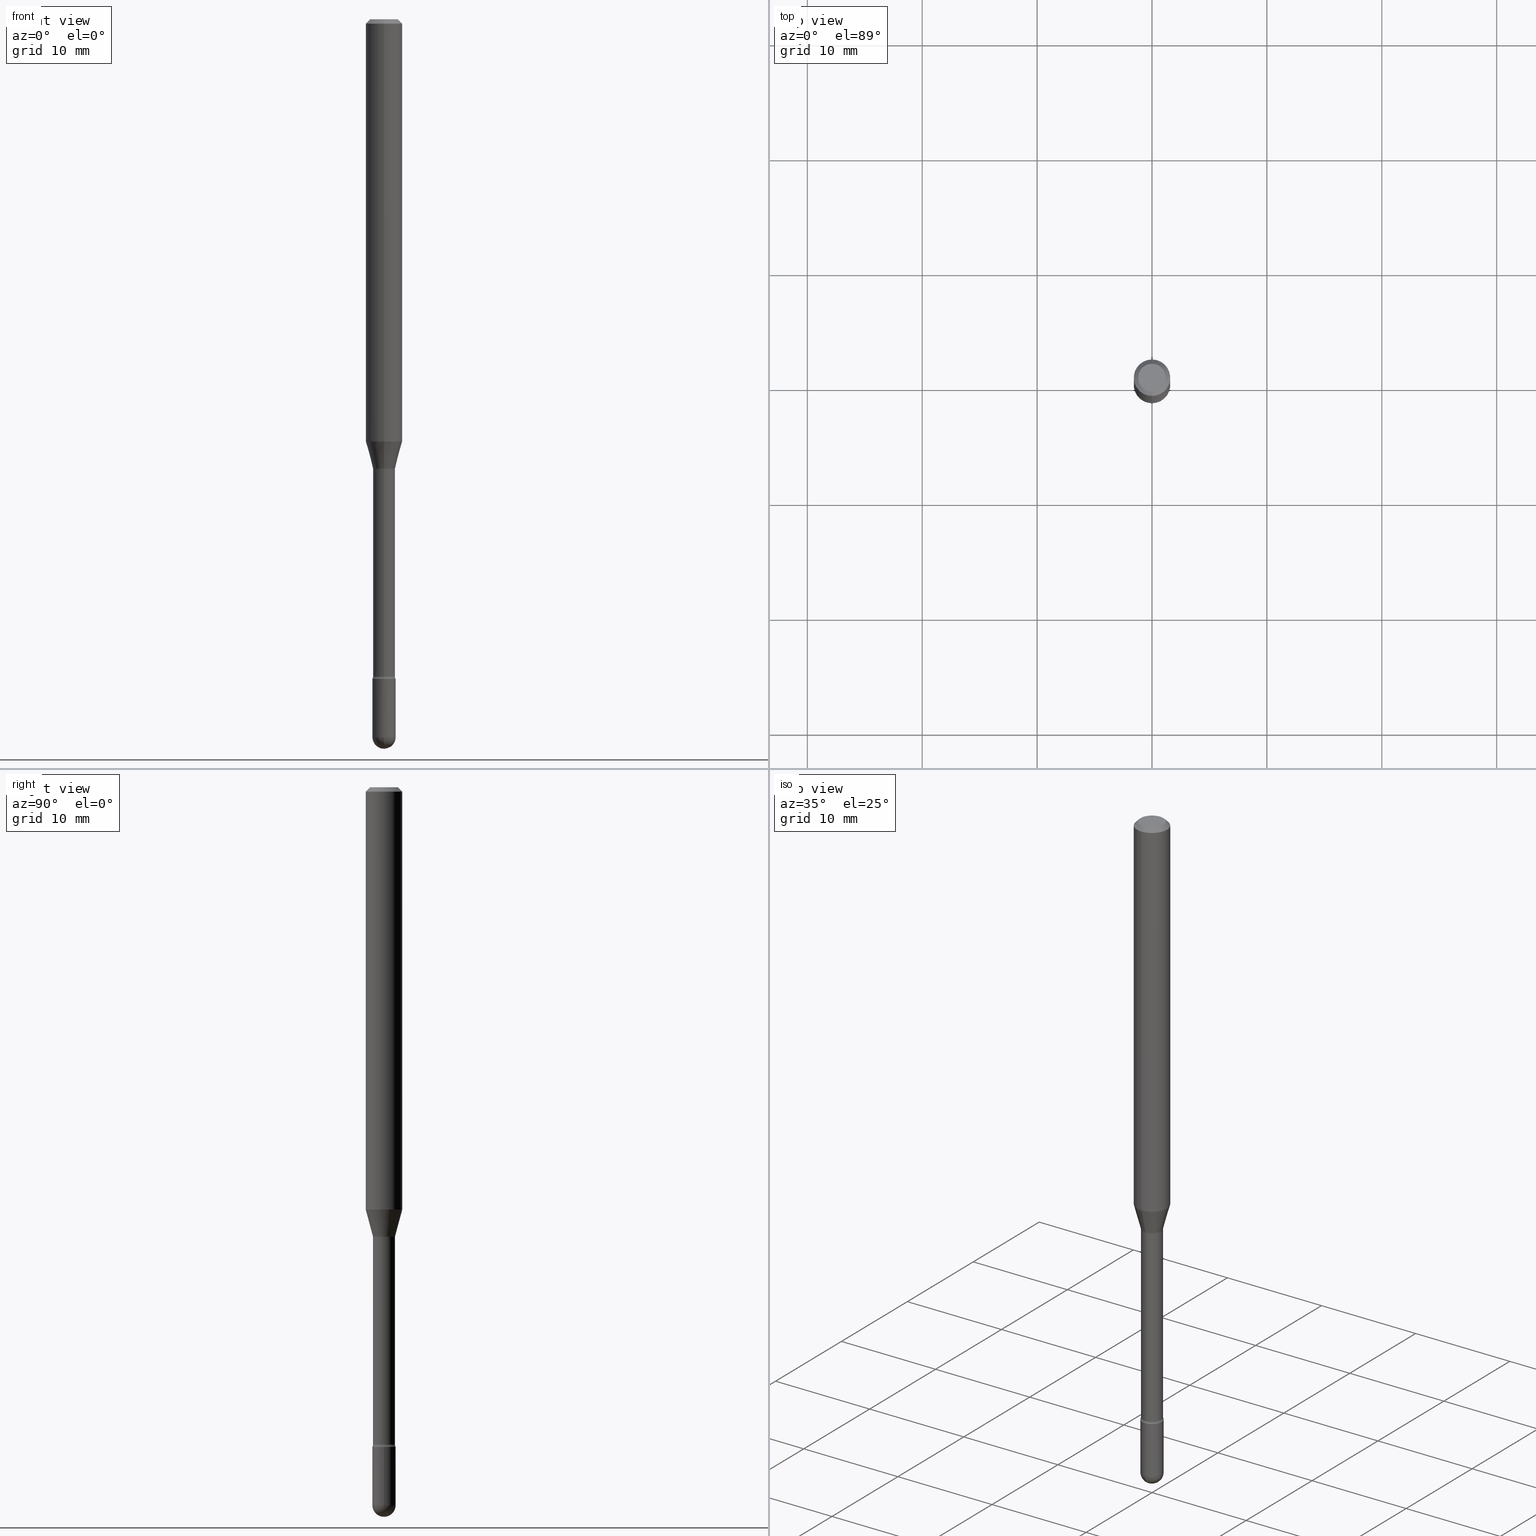
[diagram: canonical four-view strip — front | top / right | iso, engineering-drawing reading convention]
A machine part, canonical four-view strip (front | top / right | iso — engineering-drawing reading convention). The complete STEP part file that produces these views, byte-faithful:
ISO-10303-21;
HEADER;
FILE_DESCRIPTION (( 'STEP AP203' ),
    '1' );
FILE_NAME ('03742.STEP',
    '2024-04-09T20:18:51',
    ( '' ),
    ( '' ),
    'SwSTEP 2.0',
    'SolidWorks 2023',
    '' );
FILE_SCHEMA (( 'CONFIG_CONTROL_DESIGN' ));
ENDSEC;

DATA;
#1 = DATE_AND_TIME ( #471, #427 ) ;
#2 = DIRECTION ( 'NONE',  ( -2.445468806185136597E-29, 3.491481338843145583E-15, 1.000000000000000000 ) ) ;
#3 = ORIENTED_EDGE ( 'NONE', *, *, #82, .T. ) ;
#4 = AXIS2_PLACEMENT_3D ( 'NONE', #269, #273, #443 ) ;
#5 = CIRCLE ( 'NONE', #114, 0.06250000000000000000 ) ;
#6 = CARTESIAN_POINT ( 'NONE',  ( 0.000000000000000000, 0.000000000000000000, 0.000000000000000000 ) ) ;
#7 = ORIENTED_EDGE ( 'NONE', *, *, #353, .T. ) ;
#8 = ORIENTED_EDGE ( 'NONE', *, *, #401, .T. ) ;
#9 = AXIS2_PLACEMENT_3D ( 'NONE', #409, #200, #368 ) ;
#10 = DIRECTION ( 'NONE',  ( 2.445453356995440732E-29, -3.491503462962103086E-15, -1.000000000000000000 ) ) ;
#11 = AXIS2_PLACEMENT_3D ( 'NONE', #565, #493, #365 ) ;
#12 = EDGE_CURVE ( 'NONE', #300, #315, #261, .T. ) ;
#13 = DIRECTION ( 'NONE',  ( -6.982962677686265922E-15, -1.000000000000000000, 4.370956789862821150E-15 ) ) ;
#14 = CARTESIAN_POINT ( 'NONE',  ( 0.03999999999999999389, -8.519214466777273470E-15, -2.459999999999999964 ) ) ;
#15 = CARTESIAN_POINT ( 'NONE',  ( -2.842170943039800282E-16, -0.04000000000000860506, -2.459999999999999520 ) ) ;
#16 = DIRECTION ( 'NONE',  ( -2.445453356995440732E-29, 3.491503462962103086E-15, 1.000000000000000000 ) ) ;
#17 = CARTESIAN_POINT ( 'NONE',  ( 3.761333471865202687E-29, -5.370255296346309344E-15, -1.538092501787273081 ) ) ;
#18 =( NAMED_UNIT ( * ) SI_UNIT ( $, .STERADIAN. ) SOLID_ANGLE_UNIT ( ) );
#19 = VECTOR ( 'NONE', #506, 39.37007874015748143 ) ;
#20 = AXIS2_PLACEMENT_3D ( 'NONE', #477, #60, #393 ) ;
#21 = AXIS2_PLACEMENT_3D ( 'NONE', #535, #2, #450 ) ;
#22 = DIRECTION ( 'NONE',  ( -2.445453356995440732E-29, 3.491503462962103086E-15, 1.000000000000000000 ) ) ;
#23 = DIRECTION ( 'NONE',  ( 0.000000000000000000, 0.000000000000000000, 1.000000000000000000 ) ) ;
#24 = LINE ( 'NONE', #541, #281 ) ;
#25 = PERSON_AND_ORGANIZATION ( #253, #481 ) ;
#26 = CARTESIAN_POINT ( 'NONE',  ( 6.015853263215436432E-29, -8.589044093554138346E-15, -2.459999999999999964 ) ) ;
#27 = ORIENTED_EDGE ( 'NONE', *, *, #353, .F. ) ;
#28 = DIRECTION ( 'NONE',  ( -6.982962677686265922E-15, -1.000000000000000000, 3.491503462962102692E-15 ) ) ;
#29 = EDGE_CURVE ( 'NONE', #39, #558, #496, .T. ) ;
#30 = DIRECTION ( 'NONE',  ( -2.445453356995440732E-29, 3.491503462962103086E-15, 1.000000000000000000 ) ) ;
#31 = AXIS2_PLACEMENT_3D ( 'NONE', #66, #153, #13 ) ;
#32 =( GEOMETRIC_REPRESENTATION_CONTEXT ( 3 ) GLOBAL_UNCERTAINTY_ASSIGNED_CONTEXT ( ( #455 ) ) GLOBAL_UNIT_ASSIGNED_CONTEXT ( ( #341, #419, #18 ) ) REPRESENTATION_CONTEXT ( 'NONE', 'WORKASPACE' ) );
#33 = ORIENTED_EDGE ( 'NONE', *, *, #254, .F. ) ;
#34 = PLANE ( 'NONE',  #54 ) ;
#35 = DIRECTION ( 'NONE',  ( -4.851104656540964275E-15, -0.7071067811865500152, -0.7071067811865450192 ) ) ;
#36 = ADVANCED_FACE ( 'NONE', ( #52 ), #400, .T. ) ;
#37 = ORIENTED_EDGE ( 'NONE', *, *, #556, .T. ) ;
#38 = CYLINDRICAL_SURFACE ( 'NONE', #436, 0.06250000000000000000 ) ;
#39 = VERTEX_POINT ( 'NONE', #235 ) ;
#40 = DIRECTION ( 'NONE',  ( -6.982962677686265922E-15, -1.000000000000000000, 0.000000000000000000 ) ) ;
#41 = AXIS2_PLACEMENT_3D ( 'NONE', #464, #349, #168 ) ;
#42 = ORIENTED_EDGE ( 'NONE', *, *, #449, .F. ) ;
#43 = CC_DESIGN_APPROVAL ( #505, ( #224 ) ) ;
#44 = CALENDAR_DATE ( 2024, 9, 4 ) ;
#45 = DIRECTION ( 'NONE',  ( -6.982962677686265922E-15, -1.000000000000000000, 3.491503462962103086E-15 ) ) ;
#46 = ORIENTED_EDGE ( 'NONE', *, *, #475, .F. ) ;
#47 = COORDINATED_UNIVERSAL_TIME_OFFSET ( 5, 0, .BEHIND. ) ;
#48 = DIRECTION ( 'NONE',  ( -2.445453356995441012E-29, 3.491503462962102692E-15, 1.000000000000000000 ) ) ;
#49 = EDGE_CURVE ( 'NONE', #99, #379, #96, .T. ) ;
#50 = ORIENTED_EDGE ( 'NONE', *, *, #155, .T. ) ;
#51 = EDGE_CURVE ( 'NONE', #267, #384, #124, .T. ) ;
#52 = FACE_OUTER_BOUND ( 'NONE', #340, .T. ) ;
#53 = AXIS2_PLACEMENT_3D ( 'NONE', #215, #305, #241 ) ;
#54 = AXIS2_PLACEMENT_3D ( 'NONE', #550, #285, #28 ) ;
#55 = ORIENTED_EDGE ( 'NONE', *, *, #278, .F. ) ;
#56 = EDGE_LOOP ( 'NONE', ( #93, #8, #521, #358 ) ) ;
#57 = CARTESIAN_POINT ( 'NONE',  ( 6.015853263215436432E-29, -8.589044093554138346E-15, -2.459999999999999964 ) ) ;
#58 = PRODUCT_DEFINITION_SHAPE ( 'NONE', 'NONE',  #108 ) ;
#59 = FACE_OUTER_BOUND ( 'NONE', #478, .T. ) ;
#60 = DIRECTION ( 'NONE',  ( -2.445453356995440732E-29, 3.491503462962103086E-15, 1.000000000000000000 ) ) ;
#61 = AXIS2_PLACEMENT_3D ( 'NONE', #467, #249, #428 ) ;
#62 = CARTESIAN_POINT ( 'NONE',  ( 0.04000000000000000083, -8.170066332892960135E-15, -2.260000000000000231 ) ) ;
#63 = DIRECTION ( 'NONE',  ( 1.000000000000000000, -6.982962677686260400E-15, 0.000000000000000000 ) ) ;
#64 = DIRECTION ( 'NONE',  ( -6.982962677686265922E-15, -1.000000000000000000, 3.491503462962103086E-15 ) ) ;
#65 = DIRECTION ( 'NONE',  ( 1.000000000000000000, 0.000000000000000000, 0.000000000000000000 ) ) ;
#66 = CARTESIAN_POINT ( 'NONE',  ( 3.538746920994393063E-29, -5.052456671829066967E-15, -1.447071934891535294 ) ) ;
#67 = EDGE_CURVE ( 'NONE', #185, #486, #24, .T. ) ;
#68 = CALENDAR_DATE ( 2024, 9, 4 ) ;
#69 = CONICAL_SURFACE ( 'NONE', #451, 0.03811111260566402148, 0.2617993877991499629 ) ;
#70 = AXIS2_PLACEMENT_3D ( 'NONE', #338, #119, #423 ) ;
#71 = CARTESIAN_POINT ( 'NONE',  ( 5.526724586809697337E-29, -7.890797826294354245E-15, -2.260000000000000231 ) ) ;
#72 = LENGTH_MEASURE_WITH_UNIT ( LENGTH_MEASURE( 0.02539999999999999897 ), #382 );
#73 = CARTESIAN_POINT ( 'NONE',  ( 2.707957421369351104E-16, 0.03811111260565865078, -1.538092501787273081 ) ) ;
#74 = EDGE_CURVE ( 'NONE', #379, #99, #271, .T. ) ;
#75 = CARTESIAN_POINT ( 'NONE',  ( 3.538746920994393063E-29, -5.052456671829066967E-15, -1.447071934891535294 ) ) ;
#76 = ORIENTED_EDGE ( 'NONE', *, *, #134, .T. ) ;
#77 = APPLICATION_PROTOCOL_DEFINITION ( 'international standard', 'config_control_design', 1994, #162 ) ;
#78 = DIRECTION ( 'NONE',  ( 6.982962677686265922E-15, 1.000000000000000000, -3.491503462962102692E-15 ) ) ;
#79 = AXIS2_PLACEMENT_3D ( 'NONE', #112, #377, #163 ) ;
#80 = ORIENTED_EDGE ( 'NONE', *, *, #546, .T. ) ;
#81 = DIRECTION ( 'NONE',  ( -2.445453356995440732E-29, 3.491503462962103086E-15, 1.000000000000000000 ) ) ;
#82 = EDGE_CURVE ( 'NONE', #534, #392, #327, .T. ) ;
#83 = VERTEX_POINT ( 'NONE', #62 ) ;
#84 = DIRECTION ( 'NONE',  ( 2.445453356995440732E-29, -3.491503462962102692E-15, -1.000000000000000000 ) ) ;
#85 = ORIENTED_EDGE ( 'NONE', *, *, #556, .F. ) ;
#86 = DIRECTION ( 'NONE',  ( -2.445453356995441012E-29, 3.491503462962102692E-15, 1.000000000000000000 ) ) ;
#87 = ORIENTED_EDGE ( 'NONE', *, *, #322, .F. ) ;
#88 = AXIS2_PLACEMENT_3D ( 'NONE', #26, #120, #297 ) ;
#89 = EDGE_CURVE ( 'NONE', #226, #558, #133, .T. ) ;
#90 = CARTESIAN_POINT ( 'NONE',  ( 3.668180035493181539E-31, -5.237255194443183669E-17, -0.01500000000000008271 ) ) ;
#91 = ORIENTED_EDGE ( 'NONE', *, *, #89, .F. ) ;
#92 = COORDINATED_UNIVERSAL_TIME_OFFSET ( 5, 0, .BEHIND. ) ;
#93 = ORIENTED_EDGE ( 'NONE', *, *, #260, .T. ) ;
#94 = EDGE_CURVE ( 'NONE', #300, #83, #539, .T. ) ;
#95 = EDGE_LOOP ( 'NONE', ( #345, #530, #125, #516 ) ) ;
#96 = CIRCLE ( 'NONE', #415, 0.04749999999999999362 ) ;
#97 = TOROIDAL_SURFACE ( 'NONE', #263, 0.05260000000000008419, 0.01499999999999999424 ) ;
#98 = CC_DESIGN_PERSON_AND_ORGANIZATION_ASSIGNMENT ( #219, #519, ( #224 ) ) ;
#99 = VERTEX_POINT ( 'NONE', #156 ) ;
#100 = CARTESIAN_POINT ( 'NONE',  ( 3.668180035493181539E-31, -5.237255194443183669E-17, -0.01500000000000008271 ) ) ;
#101 = EDGE_LOOP ( 'NONE', ( #118, #3, #402, #439 ) ) ;
#102 = LINE ( 'NONE', #538, #489 ) ;
#103 = DIRECTION ( 'NONE',  ( -2.445453356995440732E-29, 3.491503462962103086E-15, 1.000000000000000000 ) ) ;
#104 = CIRCLE ( 'NONE', #356, 0.04000000000000000083 ) ;
#105 = EDGE_CURVE ( 'NONE', #558, #226, #104, .T. ) ;
#106 = FACE_OUTER_BOUND ( 'NONE', #394, .T. ) ;
#107 = CARTESIAN_POINT ( 'NONE',  ( -2.661284769304128200E-16, -0.03811111260566939218, -1.538092501787273081 ) ) ;
#108 = PRODUCT_DEFINITION ( 'UNKNOWN', '', #224, #367 ) ;
#109 = COORDINATED_UNIVERSAL_TIME_OFFSET ( 5, 0, .BEHIND. ) ;
#110 = DIRECTION ( 'NONE',  ( -1.807323732225328167E-15, -0.2588190451025179084, 0.9659258262890690894 ) ) ;
#111 = EDGE_CURVE ( 'NONE', #392, #216, #193, .T. ) ;
#112 = CARTESIAN_POINT ( 'NONE',  ( 6.015853263215436432E-29, -8.589044093554138346E-15, -2.459999999999999964 ) ) ;
#113 = AXIS2_PLACEMENT_3D ( 'NONE', #75, #293, #243 ) ;
#114 = AXIS2_PLACEMENT_3D ( 'NONE', #90, #16, #525 ) ;
#115 = DIRECTION ( 'NONE',  ( -2.445468806185136877E-29, 3.491481338843145188E-15, 1.000000000000000000 ) ) ;
#116 = PERSON_AND_ORGANIZATION ( #253, #481 ) ;
#117 = CARTESIAN_POINT ( 'NONE',  ( 2.671640686458530486E-16, 0.03759999999999462383, -1.541974787463810781 ) ) ;
#118 = ORIENTED_EDGE ( 'NONE', *, *, #401, .F. ) ;
#119 = DIRECTION ( 'NONE',  ( -2.445453356995440732E-29, 3.491503462962103086E-15, 1.000000000000000000 ) ) ;
#120 = DIRECTION ( 'NONE',  ( 1.000000000000000000, -6.982962677686265922E-15, 4.883557194083112340E-29 ) ) ;
#121 = VERTEX_POINT ( 'NONE', #15 ) ;
#122 = ADVANCED_FACE ( 'NONE', ( #240 ), #69, .T. ) ;
#123 = CARTESIAN_POINT ( 'NONE',  ( 4.364351673553919652E-16, 0.06249999999999995143, -0.01500000000000030129 ) ) ;
#124 = CIRCLE ( 'NONE', #507, 0.03811111260566402148 ) ;
#125 = ORIENTED_EDGE ( 'NONE', *, *, #105, .T. ) ;
#126 = DATE_TIME_ROLE ( 'classification_date' ) ;
#127 = ADVANCED_FACE ( 'NONE', ( #326 ), #192, .T. ) ;
#128 = FACE_OUTER_BOUND ( 'NONE', #177, .T. ) ;
#129 = ORIENTED_EDGE ( 'NONE', *, *, #155, .F. ) ;
#130 = DIRECTION ( 'NONE',  ( 2.445453356995440732E-29, -3.491503462962103086E-15, -1.000000000000000000 ) ) ;
#131 = VERTEX_POINT ( 'NONE', #149 ) ;
#132 = CARTESIAN_POINT ( 'NONE',  ( 3.668180035493181539E-31, -5.237255194443183669E-17, -0.01500000000000008271 ) ) ;
#133 = CIRCLE ( 'NONE', #172, 0.04000000000000000083 ) ;
#134 = EDGE_CURVE ( 'NONE', #83, #186, #398, .T. ) ;
#135 = ORIENTED_EDGE ( 'NONE', *, *, #322, .T. ) ;
#136 = TOROIDAL_SURFACE ( 'NONE', #70, 0.05260000000000008419, 0.01499999999999999424 ) ;
#137 = ADVANCED_FACE ( 'NONE', ( #502 ), #448, .T. ) ;
#138 = EDGE_CURVE ( 'NONE', #384, #392, #407, .T. ) ;
#139 = ORIENTED_EDGE ( 'NONE', *, *, #449, .T. ) ;
#140 = ORIENTED_EDGE ( 'NONE', *, *, #29, .F. ) ;
#141 = MANIFOLD_SOLID_BREP ( 'Body-Move/Copy2[1]', #406 ) ;
#142 = ADVANCED_FACE ( 'NONE', ( #59 ), #336, .F. ) ;
#143 = ORIENTED_EDGE ( 'NONE', *, *, #479, .F. ) ;
#144 = CIRCLE ( 'NONE', #205, 0.01499999999999998557 ) ;
#145 = AXIS2_PLACEMENT_3D ( 'NONE', #228, #148, #369 ) ;
#146 = ORIENTED_EDGE ( 'NONE', *, *, #94, .T. ) ;
#147 = DIRECTION ( 'NONE',  ( 6.982962677686265922E-15, 1.000000000000000000, -3.483106191921935554E-15 ) ) ;
#148 = DIRECTION ( 'NONE',  ( -2.445453356995440732E-29, 3.491503462962103086E-15, 1.000000000000000000 ) ) ;
#149 = CARTESIAN_POINT ( 'NONE',  ( 4.440892098500982135E-16, 0.06249999999999995143, -0.01500000000000030129 ) ) ;
#150 = PERSON_AND_ORGANIZATION ( #253, #481 ) ;
#151 = LOCAL_TIME ( 16, 18, 51.00000000000000000, #201 ) ;
#152 = DIRECTION ( 'NONE',  ( 1.000000000000000000, -6.982962677686259611E-15, 0.000000000000000000 ) ) ;
#153 = DIRECTION ( 'NONE',  ( -2.445453356995440732E-29, 3.491503462962103086E-15, 1.000000000000000000 ) ) ;
#154 = APPROVAL_STATUS ( 'not_yet_approved' ) ;
#155 = EDGE_CURVE ( 'NONE', #384, #486, #144, .T. ) ;
#156 = CARTESIAN_POINT ( 'NONE',  ( -3.773273898774340269E-16, -0.04749999999999999362, 8.310043331480499267E-17 ) ) ;
#157 = PERSON_AND_ORGANIZATION_ROLE ( 'creator' ) ;
#158 = AXIS2_PLACEMENT_3D ( 'NONE', #457, #22, #373 ) ;
#159 = APPROVAL_PERSON_ORGANIZATION ( #170, #422, #484 ) ;
#160 = DIRECTION ( 'NONE',  ( -6.982962677686265922E-15, -1.000000000000000000, 3.491503462962103875E-15 ) ) ;
#161 = ORIENTED_EDGE ( 'NONE', *, *, #217, .T. ) ;
#162 = APPLICATION_CONTEXT ( 'configuration controlled 3d designs of mechanical parts and assemblies' ) ;
#163 = DIRECTION ( 'NONE',  ( 1.000000000000000000, -6.982962677686260400E-15, 0.000000000000000000 ) ) ;
#164 = DIRECTION ( 'NONE',  ( -2.445453356995440732E-29, 3.491503462962103086E-15, 1.000000000000000000 ) ) ;
#165 = EDGE_CURVE ( 'NONE', #39, #185, #542, .T. ) ;
#166 = APPROVAL_DATE_TIME ( #1, #422 ) ;
#167 = EDGE_CURVE ( 'NONE', #267, #534, #474, .T. ) ;
#168 = DIRECTION ( 'NONE',  ( 7.105427357601001859E-15, 1.000000000000000000, 0.000000000000000000 ) ) ;
#169 = ORIENTED_EDGE ( 'NONE', *, *, #134, .F. ) ;
#170 = PERSON_AND_ORGANIZATION ( #253, #481 ) ;
#171 = EDGE_CURVE ( 'NONE', #275, #486, #316, .T. ) ;
#172 = AXIS2_PLACEMENT_3D ( 'NONE', #190, #503, #237 ) ;
#173 = CARTESIAN_POINT ( 'NONE',  ( -4.287811248607203282E-16, -0.06250000000000005551, -0.01499999999999986587 ) ) ;
#174 = CIRCLE ( 'NONE', #79, 0.03999999999999999389 ) ;
#175 = ORIENTED_EDGE ( 'NONE', *, *, #49, .T. ) ;
#176 = CARTESIAN_POINT ( 'NONE',  ( -2.793185071073953101E-16, -0.04000000000000789036, -2.259999999999999787 ) ) ;
#177 = EDGE_LOOP ( 'NONE', ( #432, #161, #169, #303, #179 ) ) ;
#178 = CARTESIAN_POINT ( 'NONE',  ( 2.793185071075109275E-16, 0.03999999999999143130, -2.460000000000000409 ) ) ;
#179 = ORIENTED_EDGE ( 'NONE', *, *, #12, .T. ) ;
#180 = CARTESIAN_POINT ( 'NONE',  ( -2.625593966809658857E-16, -0.03760000000000538606, -1.541974787463810781 ) ) ;
#181 = AXIS2_PLACEMENT_3D ( 'NONE', #459, #335, #152 ) ;
#182 = ORIENTED_EDGE ( 'NONE', *, *, #546, .F. ) ;
#183 = DIRECTION ( 'NONE',  ( -2.445468806185136597E-29, 3.491481338843145583E-15, 1.000000000000000000 ) ) ;
#184 = EDGE_CURVE ( 'NONE', #99, #216, #387, .T. ) ;
#185 = VERTEX_POINT ( 'NONE', #252 ) ;
#186 = VERTEX_POINT ( 'NONE', #391 ) ;
#187 = AXIS2_PLACEMENT_3D ( 'NONE', #218, #312, #483 ) ;
#188 = AXIS2_PLACEMENT_3D ( 'NONE', #540, #325, #276 ) ;
#189 = DIRECTION ( 'NONE',  ( -2.445453356995440732E-29, 3.491503462962103086E-15, 1.000000000000000000 ) ) ;
#190 = CARTESIAN_POINT ( 'NONE',  ( 5.526724586809697337E-29, -7.890797826294354245E-15, -2.260000000000000231 ) ) ;
#191 = FACE_OUTER_BOUND ( 'NONE', #223, .T. ) ;
#192 = CYLINDRICAL_SURFACE ( 'NONE', #9, 0.06250000000000000000 ) ;
#193 = LINE ( 'NONE', #330, #19 ) ;
#194 = AXIS2_PLACEMENT_3D ( 'NONE', #418, #103, #64 ) ;
#195 = EDGE_CURVE ( 'NONE', #185, #226, #196, .T. ) ;
#196 = CIRCLE ( 'NONE', #221, 0.01499999999999999424 ) ;
#197 = TOROIDAL_SURFACE ( 'NONE', #145, 0.05260000000000000092, 0.01499999999999998557 ) ;
#198 = CARTESIAN_POINT ( 'NONE',  ( 2.023440515978458024E-45, -2.889184567745816405E-31, -8.274598117589490934E-17 ) ) ;
#199 = DATE_TIME_ROLE ( 'creation_date' ) ;
#200 = DIRECTION ( 'NONE',  ( -2.445453356995440732E-29, 3.491503462962103086E-15, 1.000000000000000000 ) ) ;
#201 = COORDINATED_UNIVERSAL_TIME_OFFSET ( 5, 0, .BEHIND. ) ;
#202 = CYLINDRICAL_SURFACE ( 'NONE', #543, 0.03760000000000005005 ) ;
#203 = ORIENTED_EDGE ( 'NONE', *, *, #82, .F. ) ;
#204 = DIRECTION ( 'NONE',  ( -7.105427357601000281E-15, -1.000000000000000000, 0.000000000000000000 ) ) ;
#205 = AXIS2_PLACEMENT_3D ( 'NONE', #287, #324, #280 ) ;
#206 = CIRCLE ( 'NONE', #461, 0.04000000000000004940 ) ;
#207 = CYLINDRICAL_SURFACE ( 'NONE', #346, 0.04000000000000000083 ) ;
#208 = ADVANCED_FACE ( 'NONE', ( #383 ), #472, .F. ) ;
#209 = EDGE_LOOP ( 'NONE', ( #55, #37, #42, #473 ) ) ;
#210 = CARTESIAN_POINT ( 'NONE',  ( -3.673038368462430836E-16, -0.05260000000000794596, -2.251861204020249918 ) ) ;
#211 = EDGE_LOOP ( 'NONE', ( #441, #175 ) ) ;
#212 = DIRECTION ( 'NONE',  ( 1.839019923739597949E-15, 0.2588190451025246253, 0.9659258262890670910 ) ) ;
#213 = ORIENTED_EDGE ( 'NONE', *, *, #138, .T. ) ;
#214 = CIRCLE ( 'NONE', #41, 0.01499999999999998557 ) ;
#215 = CARTESIAN_POINT ( 'NONE',  ( 3.668180035493181539E-31, -5.237255194443183669E-17, -0.01500000000000008271 ) ) ;
#216 = VERTEX_POINT ( 'NONE', #385 ) ;
#217 = EDGE_CURVE ( 'NONE', #490, #186, #342, .T. ) ;
#218 = CARTESIAN_POINT ( 'NONE',  ( 6.015853263215436432E-29, -8.589044093554138346E-15, -2.459999999999999964 ) ) ;
#219 = PERSON_AND_ORGANIZATION ( #253, #481 ) ;
#220 = ORIENTED_EDGE ( 'NONE', *, *, #184, .F. ) ;
#221 = AXIS2_PLACEMENT_3D ( 'NONE', #210, #563, #520 ) ;
#222 = ADVANCED_FACE ( 'NONE', ( #128 ), #207, .T. ) ;
#223 = EDGE_LOOP ( 'NONE', ( #33, #46, #50, #527 ) ) ;
#224 = PRODUCT_DEFINITION_FORMATION_WITH_SPECIFIED_SOURCE ( 'ANY', '', #270, .NOT_KNOWN. ) ;
#225 = EDGE_CURVE ( 'NONE', #216, #131, #238, .T. ) ;
#226 = VERTEX_POINT ( 'NONE', #176 ) ;
#227 = EDGE_LOOP ( 'NONE', ( #91, #350 ) ) ;
#228 = CARTESIAN_POINT ( 'NONE',  ( 3.770851242666705328E-29, -5.383776195396521708E-15, -1.541974787463811003 ) ) ;
#229 = CARTESIAN_POINT ( 'NONE',  ( 6.015853263215436432E-29, -8.589044093554138346E-15, -2.459999999999999964 ) ) ;
#230 = CC_DESIGN_APPROVAL ( #422, ( #363 ) ) ;
#231 = CC_DESIGN_SECURITY_CLASSIFICATION ( #363, ( #224 ) ) ;
#232 = CARTESIAN_POINT ( 'NONE',  ( 6.115382348041200269E-29, -8.726254053509568220E-15, -2.500000000000000000 ) ) ;
#233 = DIRECTION ( 'NONE',  ( -6.982962677686265922E-15, -1.000000000000000000, 6.829619984160658243E-15 ) ) ;
#234 = DIRECTION ( 'NONE',  ( -2.445468806185136597E-29, 3.491481338843145583E-15, 1.000000000000000000 ) ) ;
#235 = CARTESIAN_POINT ( 'NONE',  ( 2.756905814749742978E-16, 0.03759999999999222992, -2.251861204020249918 ) ) ;
#236 = PERSON_AND_ORGANIZATION_ROLE ( 'design_owner' ) ;
#237 = DIRECTION ( 'NONE',  ( -6.982962677686265922E-15, -1.000000000000000000, 6.829619984160658243E-15 ) ) ;
#238 = CIRCLE ( 'NONE', #53, 0.06250000000000000000 ) ;
#239 = VECTOR ( 'NONE', #302, 39.37007874015748143 ) ;
#240 = FACE_OUTER_BOUND ( 'NONE', #468, .T. ) ;
#241 = DIRECTION ( 'NONE',  ( -6.982962677686265922E-15, -1.000000000000000000, 3.483106191921935554E-15 ) ) ;
#242 = ADVANCED_FACE ( 'NONE', ( #510 ), #38, .T. ) ;
#243 = DIRECTION ( 'NONE',  ( -6.982962677686265922E-15, -1.000000000000000000, 4.370956789862821150E-15 ) ) ;
#244 = APPLICATION_CONTEXT ( 'configuration controlled 3d designs of mechanical parts and assemblies' ) ;
#245 = ORIENTED_EDGE ( 'NONE', *, *, #138, .F. ) ;
#246 = MECHANICAL_CONTEXT ( 'NONE', #162, 'mechanical' ) ;
#247 = EDGE_CURVE ( 'NONE', #486, #275, #515, .T. ) ;
#248 = AXIS2_PLACEMENT_3D ( 'NONE', #262, #440, #310 ) ;
#249 = DIRECTION ( 'NONE',  ( -2.445453356995440732E-29, 3.491503462962103086E-15, 1.000000000000000000 ) ) ;
#250 = ORIENTED_EDGE ( 'NONE', *, *, #89, .T. ) ;
#251 = SECURITY_CLASSIFICATION_LEVEL ( 'unclassified' ) ;
#252 = CARTESIAN_POINT ( 'NONE',  ( -2.625593966809491224E-16, -0.03760000000000795345, -2.251861204020249918 ) ) ;
#253 = PERSON ( 'UNSPECIFIED', 'UNSPECIFIED', 'UNSPECIFIED', ('UNSPECIFIED'), ('UNSPECIFIED'), ('UNSPECIFIED') ) ;
#254 = EDGE_CURVE ( 'NONE', #267, #275, #214, .T. ) ;
#255 = ORIENTED_EDGE ( 'NONE', *, *, #171, .T. ) ;
#256 = PERSON_AND_ORGANIZATION ( #253, #481 ) ;
#257 = CARTESIAN_POINT ( 'NONE',  ( 3.770827420405706512E-29, -5.383810310230147956E-15, -1.541974787463810781 ) ) ;
#258 = ORIENTED_EDGE ( 'NONE', *, *, #184, .T. ) ;
#259 = COORDINATED_UNIVERSAL_TIME_OFFSET ( 5, 0, .BEHIND. ) ;
#260 = EDGE_CURVE ( 'NONE', #392, #534, #362, .T. ) ;
#261 = CIRCLE ( 'NONE', #187, 0.03999999999999999389 ) ;
#262 = CARTESIAN_POINT ( 'NONE',  ( 6.015853263215436432E-29, -8.589044093554138346E-15, -2.459999999999999964 ) ) ;
#263 = AXIS2_PLACEMENT_3D ( 'NONE', #438, #189, #45 ) ;
#264 = ORIENTED_EDGE ( 'NONE', *, *, #217, .F. ) ;
#265 = PERSON_AND_ORGANIZATION ( #253, #481 ) ;
#266 = CARTESIAN_POINT ( 'NONE',  ( 3.840629472727447874E-16, 0.04749999999999999362, -2.485923956665947867E-16 ) ) ;
#267 = VERTEX_POINT ( 'NONE', #462 ) ;
#268 = PERSON_AND_ORGANIZATION_ROLE ( 'design_supplier' ) ;
#269 = CARTESIAN_POINT ( 'NONE',  ( 3.737454790098683190E-16, 0.05259999999999222242, -2.251861204020250362 ) ) ;
#270 = PRODUCT ( '03742', '03742', '', ( #246 ) ) ;
#271 = CIRCLE ( 'NONE', #380, 0.04749999999999999362 ) ;
#272 = AXIS2_PLACEMENT_3D ( 'NONE', #352, #410, #447 ) ;
#273 = DIRECTION ( 'NONE',  ( 1.000000000000000000, -7.105427357601001070E-15, 4.926315779484396531E-29 ) ) ;
#274 = VECTOR ( 'NONE', #86, 39.37007874015748143 ) ;
#275 = VERTEX_POINT ( 'NONE', #117 ) ;
#276 = DIRECTION ( 'NONE',  ( 1.000000000000000000, -6.982962677686265922E-15, 4.876176775795935793E-29 ) ) ;
#277 = DIRECTION ( 'NONE',  ( -6.982962677686265922E-15, -1.000000000000000000, 0.000000000000000000 ) ) ;
#278 = EDGE_CURVE ( 'NONE', #348, #315, #390, .T. ) ;
#279 = FACE_OUTER_BOUND ( 'NONE', #425, .T. ) ;
#280 = DIRECTION ( 'NONE',  ( -6.982962677686266711E-15, -1.000000000000000000, 0.000000000000000000 ) ) ;
#281 = VECTOR ( 'NONE', #289, 39.37007874015748143 ) ;
#282 = APPROVAL_PERSON_ORGANIZATION ( #150, #532, #288 ) ;
#283 = PLANE ( 'NONE',  #188 ) ;
#284 = CARTESIAN_POINT ( 'NONE',  ( 2.023440515978458024E-45, -2.889184567745816405E-31, -8.274598117589490934E-17 ) ) ;
#285 = DIRECTION ( 'NONE',  ( -2.445453356995440732E-29, 3.491503462962102692E-15, 1.000000000000000000 ) ) ;
#286 = ADVANCED_FACE ( 'NONE', ( #424 ), #202, .T. ) ;
#287 = CARTESIAN_POINT ( 'NONE',  ( -3.673038368462598469E-16, -0.05260000000000538550, -1.541974787463810781 ) ) ;
#288 = APPROVAL_ROLE ( '' ) ;
#289 = DIRECTION ( 'NONE',  ( -2.445453356995441012E-29, 3.491503462962102692E-15, 1.000000000000000000 ) ) ;
#290 = AXIS2_PLACEMENT_3D ( 'NONE', #6, #183, #445 ) ;
#291 = LOCAL_TIME ( 16, 18, 51.00000000000000000, #92 ) ;
#292 = CARTESIAN_POINT ( 'NONE',  ( 3.761333471865202687E-29, -5.370255296346309344E-15, -1.538092501787273081 ) ) ;
#293 = DIRECTION ( 'NONE',  ( -2.445453356995440732E-29, 3.491503462962103086E-15, 1.000000000000000000 ) ) ;
#294 = ADVANCED_FACE ( 'NONE', ( #344 ), #299, .T. ) ;
#295 = DIRECTION ( 'NONE',  ( -6.982962677686265922E-15, -1.000000000000000000, 0.000000000000000000 ) ) ;
#296 = EDGE_CURVE ( 'NONE', #379, #131, #514, .T. ) ;
#297 = DIRECTION ( 'NONE',  ( 6.982962677686266711E-15, 1.000000000000000000, 0.000000000000000000 ) ) ;
#298 = DIRECTION ( 'NONE',  ( -1.000000000000000000, 7.105427357601001070E-15, -4.926315508542082329E-29 ) ) ;
#299 = CYLINDRICAL_SURFACE ( 'NONE', #61, 0.03760000000000005005 ) ;
#300 = VERTEX_POINT ( 'NONE', #14 ) ;
#301 = CONICAL_SURFACE ( 'NONE', #562, 0.06250000000000000000, 0.7853981633974483900 ) ;
#302 = DIRECTION ( 'NONE',  ( 4.937700262164548042E-15, 0.7071067811865451302, -0.7071067811865499042 ) ) ;
#303 = ORIENTED_EDGE ( 'NONE', *, *, #94, .F. ) ;
#304 = CALENDAR_DATE ( 2024, 9, 4 ) ;
#305 = DIRECTION ( 'NONE',  ( -2.445453356995440732E-29, 3.491503462962103086E-15, 1.000000000000000000 ) ) ;
#306 = ORIENTED_EDGE ( 'NONE', *, *, #167, .F. ) ;
#307 = APPROVAL_DATE_TIME ( #343, #505 ) ;
#308 = LINE ( 'NONE', #522, #274 ) ;
#309 = ORIENTED_EDGE ( 'NONE', *, *, #12, .F. ) ;
#310 = DIRECTION ( 'NONE',  ( 6.982962677686265922E-15, 1.000000000000000000, -6.829619984160649566E-15 ) ) ;
#311 = CIRCLE ( 'NONE', #21, 0.04000000000000000083 ) ;
#312 = DIRECTION ( 'NONE',  ( -2.445468806185136597E-29, 3.491481338843145583E-15, 1.000000000000000000 ) ) ;
#313 = APPROVAL_STATUS ( 'not_yet_approved' ) ;
#314 = ORIENTED_EDGE ( 'NONE', *, *, #479, .T. ) ;
#315 = VERTEX_POINT ( 'NONE', #178 ) ;
#316 = CIRCLE ( 'NONE', #480, 0.03760000000000000148 ) ;
#317 = ADVANCED_FACE ( 'NONE', ( #106 ), #497, .T. ) ;
#318 = CIRCLE ( 'NONE', #508, 0.03999999999999999389 ) ;
#319 = ORIENTED_EDGE ( 'NONE', *, *, #475, .T. ) ;
#320 = FACE_OUTER_BOUND ( 'NONE', #227, .T. ) ;
#321 = ORIENTED_EDGE ( 'NONE', *, *, #296, .F. ) ;
#322 = EDGE_CURVE ( 'NONE', #39, #275, #102, .T. ) ;
#323 = FACE_OUTER_BOUND ( 'NONE', #359, .T. ) ;
#324 = DIRECTION ( 'NONE',  ( -1.000000000000000000, 6.982962677686265922E-15, -4.883557194083112340E-29 ) ) ;
#325 = DIRECTION ( 'NONE',  ( -2.438088387897960049E-29, 3.491481338843145188E-15, 1.000000000000000000 ) ) ;
#326 = FACE_OUTER_BOUND ( 'NONE', #56, .T. ) ;
#327 = CIRCLE ( 'NONE', #31, 0.06250000000000000000 ) ;
#328 = CIRCLE ( 'NONE', #11, 0.03760000000000009168 ) ;
#329 = CALENDAR_DATE ( 2024, 9, 4 ) ;
#330 = CARTESIAN_POINT ( 'NONE',  ( -4.364351673553916201E-16, -0.06250000000000000000, 6.962923653263774815E-16 ) ) ;
#331 = APPROVAL_DATE_TIME ( #500, #532 ) ;
#332 = ADVANCED_FACE ( 'NONE', ( #191 ), #197, .F. ) ;
#333 = CARTESIAN_POINT ( 'NONE',  ( 3.761333471865202687E-29, -5.370255296346309344E-15, -1.538092501787273081 ) ) ;
#334 = CARTESIAN_POINT ( 'NONE',  ( 4.440892098500977205E-16, 0.06249999999999491379, -1.447071934891535516 ) ) ;
#335 = DIRECTION ( 'NONE',  ( -2.445468806185136597E-29, 3.491481338843145583E-15, 1.000000000000000000 ) ) ;
#336 = TOROIDAL_SURFACE ( 'NONE', #194, 0.05260000000000000092, 0.01499999999999998557 ) ;
#337 = APPROVAL_PERSON_ORGANIZATION ( #548, #505, #524 ) ;
#338 = CARTESIAN_POINT ( 'NONE',  ( 5.506856330290025342E-29, -7.862331371501561090E-15, -2.251861204020249918 ) ) ;
#339 = DIRECTION ( 'NONE',  ( -6.982962677686265922E-15, -1.000000000000000000, 0.000000000000000000 ) ) ;
#340 = EDGE_LOOP ( 'NONE', ( #264, #139, #80, #146, #27 ) ) ;
#341 =( CONVERSION_BASED_UNIT ( 'INCH', #72 ) LENGTH_UNIT ( ) NAMED_UNIT ( #434 ) );
#342 = LINE ( 'NONE', #433, #528 ) ;
#343 = DATE_AND_TIME ( #304, #291 ) ;
#344 = FACE_OUTER_BOUND ( 'NONE', #523, .T. ) ;
#345 = ORIENTED_EDGE ( 'NONE', *, *, #165, .F. ) ;
#346 = AXIS2_PLACEMENT_3D ( 'NONE', #557, #378, #554 ) ;
#347 = DIRECTION ( 'NONE',  ( -2.445453356995440732E-29, 3.491503462962103086E-15, 1.000000000000000000 ) ) ;
#348 = VERTEX_POINT ( 'NONE', #232 ) ;
#349 = DIRECTION ( 'NONE',  ( 1.000000000000000000, -7.105427357601001070E-15, 4.926315779484396531E-29 ) ) ;
#350 = ORIENTED_EDGE ( 'NONE', *, *, #105, .F. ) ;
#351 = PERSON_AND_ORGANIZATION_ROLE ( 'classification_officer' ) ;
#352 = CARTESIAN_POINT ( 'NONE',  ( 6.015853263215436432E-29, -8.589044093554138346E-15, -2.459999999999999964 ) ) ;
#353 = EDGE_CURVE ( 'NONE', #186, #83, #311, .T. ) ;
#354 = ORIENTED_EDGE ( 'NONE', *, *, #74, .F. ) ;
#355 = ADVANCED_FACE ( 'NONE', ( #482 ), #283, .T. ) ;
#356 = AXIS2_PLACEMENT_3D ( 'NONE', #71, #412, #233 ) ;
#357 = LOCAL_TIME ( 16, 18, 51.00000000000000000, #259 ) ;
#358 = ORIENTED_EDGE ( 'NONE', *, *, #111, .F. ) ;
#359 = EDGE_LOOP ( 'NONE', ( #140, #143, #364, #250 ) ) ;
#360 = ORIENTED_EDGE ( 'NONE', *, *, #165, .T. ) ;
#361 = CARTESIAN_POINT ( 'NONE',  ( -0.03999999999999999389, -7.955678865365783106E-15, -2.459999999999999964 ) ) ;
#362 = CIRCLE ( 'NONE', #113, 0.06250000000000000000 ) ;
#363 = SECURITY_CLASSIFICATION ( '', '', #251 ) ;
#364 = ORIENTED_EDGE ( 'NONE', *, *, #195, .T. ) ;
#365 = DIRECTION ( 'NONE',  ( -6.982962677686265133E-15, -1.000000000000000000, 0.000000000000000000 ) ) ;
#366 = ADVANCED_BREP_SHAPE_REPRESENTATION ( '03742', ( #141, #517, #529 ), #32 ) ;
#367 = DESIGN_CONTEXT ( 'detailed design', #244, 'design' ) ;
#368 = DIRECTION ( 'NONE',  ( -6.982962677686265922E-15, -1.000000000000000000, 3.491503462962103481E-15 ) ) ;
#369 = DIRECTION ( 'NONE',  ( -6.982962677686265922E-15, -1.000000000000000000, 3.491503462962103086E-15 ) ) ;
#370 = DIRECTION ( 'NONE',  ( -2.445453356995440732E-29, 3.491503462962103086E-15, 1.000000000000000000 ) ) ;
#371 = DIRECTION ( 'NONE',  ( -6.982962677686265922E-15, -1.000000000000000000, 0.000000000000000000 ) ) ;
#372 = VECTOR ( 'NONE', #212, 39.37007874015748854 ) ;
#373 = DIRECTION ( 'NONE',  ( -6.982962677686265133E-15, -1.000000000000000000, 0.000000000000000000 ) ) ;
#374 = CARTESIAN_POINT ( 'NONE',  ( 2.842170943040952512E-16, 0.03999999999999211131, -2.260000000000000675 ) ) ;
#375 = ADVANCED_FACE ( 'NONE', ( #495 ), #396, .T. ) ;
#376 = DIRECTION ( 'NONE',  ( -6.982962677686266711E-15, -1.000000000000000000, 3.491503462962103481E-15 ) ) ;
#377 = DIRECTION ( 'NONE',  ( -2.445468806185136597E-29, 3.491481338843145583E-15, 1.000000000000000000 ) ) ;
#378 = DIRECTION ( 'NONE',  ( -2.445468806185136597E-29, 3.491481338843145583E-15, 1.000000000000000000 ) ) ;
#379 = VERTEX_POINT ( 'NONE', #266 ) ;
#380 = AXIS2_PLACEMENT_3D ( 'NONE', #284, #370, #376 ) ;
#381 = CIRCLE ( 'NONE', #272, 0.03999999999999999389 ) ;
#382 =( LENGTH_UNIT ( ) NAMED_UNIT ( * ) SI_UNIT ( $, .METRE. ) );
#383 = FACE_OUTER_BOUND ( 'NONE', #211, .T. ) ;
#384 = VERTEX_POINT ( 'NONE', #454 ) ;
#385 = CARTESIAN_POINT ( 'NONE',  ( -4.364351673553912750E-16, -0.06250000000000005551, -0.01499999999999986587 ) ) ;
#386 = ORIENTED_EDGE ( 'NONE', *, *, #278, .T. ) ;
#387 = LINE ( 'NONE', #173, #389 ) ;
#388 = CC_DESIGN_DATE_AND_TIME_ASSIGNMENT ( #417, #199, ( #108 ) ) ;
#389 = VECTOR ( 'NONE', #35, 39.37007874015748143 ) ;
#390 = CIRCLE ( 'NONE', #88, 0.04000000000000004940 ) ;
#391 = CARTESIAN_POINT ( 'NONE',  ( -0.04000000000000000083, -7.955678865365783106E-15, -2.260000000000000231 ) ) ;
#392 = VERTEX_POINT ( 'NONE', #491 ) ;
#393 = DIRECTION ( 'NONE',  ( -6.982962677686265922E-15, -1.000000000000000000, 0.000000000000000000 ) ) ;
#394 = EDGE_LOOP ( 'NONE', ( #566, #258, #564, #321 ) ) ;
#395 = SHAPE_DEFINITION_REPRESENTATION ( #58, #366 ) ;
#396 = SPHERICAL_SURFACE ( 'NONE', #248, 0.04000000000000004940 ) ;
#397 = ORIENTED_EDGE ( 'NONE', *, *, #167, .T. ) ;
#398 = CIRCLE ( 'NONE', #181, 0.04000000000000000083 ) ;
#399 = CIRCLE ( 'NONE', #20, 0.03811111260566402148 ) ;
#400 = CYLINDRICAL_SURFACE ( 'NONE', #290, 0.04000000000000000083 ) ;
#401 = EDGE_CURVE ( 'NONE', #534, #131, #308, .T. ) ;
#402 = ORIENTED_EDGE ( 'NONE', *, *, #111, .T. ) ;
#403 = ORIENTED_EDGE ( 'NONE', *, *, #51, .T. ) ;
#404 = CC_DESIGN_PERSON_AND_ORGANIZATION_ASSIGNMENT ( #265, #351, ( #363 ) ) ;
#405 = FACE_OUTER_BOUND ( 'NONE', #95, .T. ) ;
#406 = CLOSED_SHELL ( 'NONE', ( #222, #137, #355, #375, #36 ) ) ;
#407 = LINE ( 'NONE', #107, #469 ) ;
#408 = DIRECTION ( 'NONE',  ( 6.982962677686265922E-15, 1.000000000000000000, -3.483106191921935554E-15 ) ) ;
#409 = CARTESIAN_POINT ( 'NONE',  ( -1.169113584055446105E-44, 1.669184350826100908E-30, 4.780733988912460139E-16 ) ) ;
#410 = DIRECTION ( 'NONE',  ( -2.445468806185136597E-29, 3.491481338843145583E-15, 1.000000000000000000 ) ) ;
#411 = CC_DESIGN_PERSON_AND_ORGANIZATION_ASSIGNMENT ( #25, #236, ( #270 ) ) ;
#412 = DIRECTION ( 'NONE',  ( -2.445453356995440732E-29, 3.491503462962103086E-15, 1.000000000000000000 ) ) ;
#413 = APPLICATION_PROTOCOL_DEFINITION ( 'international standard', 'config_control_design', 1994, #244 ) ;
#414 = DIRECTION ( 'NONE',  ( 6.982962677686265922E-15, 1.000000000000000000, -6.829619984160649566E-15 ) ) ;
#415 = AXIS2_PLACEMENT_3D ( 'NONE', #198, #452, #498 ) ;
#416 = CC_DESIGN_APPROVAL ( #532, ( #108 ) ) ;
#417 = DATE_AND_TIME ( #68, #536 ) ;
#418 = CARTESIAN_POINT ( 'NONE',  ( 3.770851242666705328E-29, -5.383776195396521708E-15, -1.541974787463811003 ) ) ;
#419 =( NAMED_UNIT ( * ) PLANE_ANGLE_UNIT ( ) SI_UNIT ( $, .RADIAN. ) );
#420 = ADVANCED_FACE ( 'NONE', ( #279 ), #301, .T. ) ;
#421 = CARTESIAN_POINT ( 'NONE',  ( 3.770827420405706512E-29, -5.383810310230147956E-15, -1.541974787463810781 ) ) ;
#422 = APPROVAL ( #313, 'UNSPECIFIED' ) ;
#423 = DIRECTION ( 'NONE',  ( -6.982962677686265922E-15, -1.000000000000000000, 3.491503462962103086E-15 ) ) ;
#424 = FACE_OUTER_BOUND ( 'NONE', #537, .T. ) ;
#425 = EDGE_LOOP ( 'NONE', ( #220, #354, #435, #513 ) ) ;
#426 = CLOSED_SHELL ( 'NONE', ( #142, #286, #466, #317, #127, #553, #122, #242, #420, #208, #533, #501, #294, #332 ) ) ;
#427 = LOCAL_TIME ( 16, 18, 51.00000000000000000, #47 ) ;
#428 = DIRECTION ( 'NONE',  ( -6.982962677686265922E-15, -1.000000000000000000, 3.491503462962103875E-15 ) ) ;
#429 = ORIENTED_EDGE ( 'NONE', *, *, #67, .F. ) ;
#430 = CARTESIAN_POINT ( 'NONE',  ( 3.316907271900976096E-16, 0.04749999999999999362, 3.181729436697570575E-17 ) ) ;
#431 = CC_DESIGN_PERSON_AND_ORGANIZATION_ASSIGNMENT ( #116, #157, ( #108 ) ) ;
#432 = ORIENTED_EDGE ( 'NONE', *, *, #437, .T. ) ;
#433 = CARTESIAN_POINT ( 'NONE',  ( -0.04000000000000000083, 2.842170943040400803E-16, -1.967574036101962509E-30 ) ) ;
#434 = DIMENSIONAL_EXPONENTS ( 1.000000000000000000, 0.000000000000000000, 0.000000000000000000, 0.000000000000000000, 0.000000000000000000, 0.000000000000000000, 0.000000000000000000 ) ;
#435 = ORIENTED_EDGE ( 'NONE', *, *, #296, .T. ) ;
#436 = AXIS2_PLACEMENT_3D ( 'NONE', #559, #81, #512 ) ;
#437 = EDGE_CURVE ( 'NONE', #315, #490, #318, .T. ) ;
#438 = CARTESIAN_POINT ( 'NONE',  ( 5.506856330290025342E-29, -7.862331371501561090E-15, -2.251861204020249918 ) ) ;
#439 = ORIENTED_EDGE ( 'NONE', *, *, #453, .F. ) ;
#440 = DIRECTION ( 'NONE',  ( -1.000000000000000000, 6.982962677686265922E-15, -4.883557194083112340E-29 ) ) ;
#441 = ORIENTED_EDGE ( 'NONE', *, *, #74, .T. ) ;
#442 = DATE_AND_TIME ( #44, #357 ) ;
#443 = DIRECTION ( 'NONE',  ( 7.105427357601001859E-15, 1.000000000000000000, 0.000000000000000000 ) ) ;
#444 = CONICAL_SURFACE ( 'NONE', #470, 0.03811111260566402148, 0.2617993877991499629 ) ;
#445 = DIRECTION ( 'NONE',  ( 1.000000000000000000, -6.982962677686265922E-15, 4.876176775795935793E-29 ) ) ;
#446 = ORIENTED_EDGE ( 'NONE', *, *, #247, .F. ) ;
#447 = DIRECTION ( 'NONE',  ( 1.000000000000000000, -6.982962677686260400E-15, 0.000000000000000000 ) ) ;
#448 = SPHERICAL_SURFACE ( 'NONE', #488, 0.04000000000000004940 ) ;
#449 = EDGE_CURVE ( 'NONE', #490, #121, #381, .T. ) ;
#450 = DIRECTION ( 'NONE',  ( 1.000000000000000000, -6.982962677686259611E-15, 0.000000000000000000 ) ) ;
#451 = AXIS2_PLACEMENT_3D ( 'NONE', #333, #544, #277 ) ;
#452 = DIRECTION ( 'NONE',  ( -2.445453356995440732E-29, 3.491503462962103086E-15, 1.000000000000000000 ) ) ;
#453 = EDGE_CURVE ( 'NONE', #131, #216, #5, .T. ) ;
#454 = CARTESIAN_POINT ( 'NONE',  ( -2.661284769304128200E-16, -0.03811111260566939218, -1.538092501787273081 ) ) ;
#455 = UNCERTAINTY_MEASURE_WITH_UNIT (LENGTH_MEASURE( 1.000000000000000082E-05 ), #341, 'distance_accuracy_value', 'NONE');
#456 = CARTESIAN_POINT ( 'NONE',  ( 0.04000000000000000083, -2.793185071074506290E-16, 1.950470710318374387E-30 ) ) ;
#457 = CARTESIAN_POINT ( 'NONE',  ( 5.506821540859115378E-29, -7.862381191946714218E-15, -2.251861204020249918 ) ) ;
#458 = DIRECTION ( 'NONE',  ( -2.445453356995440732E-29, 3.491503462962103086E-15, 1.000000000000000000 ) ) ;
#459 = CARTESIAN_POINT ( 'NONE',  ( 5.526759501978408888E-29, -7.890747825785510097E-15, -2.260000000000000231 ) ) ;
#460 = AXIS2_PLACEMENT_3D ( 'NONE', #430, #84, #78 ) ;
#461 = AXIS2_PLACEMENT_3D ( 'NONE', #509, #298, #204 ) ;
#462 = CARTESIAN_POINT ( 'NONE',  ( 3.574424759935166620E-16, 0.03811111260565865078, -1.538092501787273081 ) ) ;
#463 = APPROVAL_STATUS ( 'not_yet_approved' ) ;
#464 = CARTESIAN_POINT ( 'NONE',  ( 3.737454790098503724E-16, 0.05259999999999460940, -1.541974787463811225 ) ) ;
#465 = EDGE_LOOP ( 'NONE', ( #76, #7 ) ) ;
#466 = ADVANCED_FACE ( 'NONE', ( #405 ), #97, .F. ) ;
#467 = CARTESIAN_POINT ( 'NONE',  ( -1.169113584055446105E-44, 1.669184350826100908E-30, 4.780733988912460139E-16 ) ) ;
#468 = EDGE_LOOP ( 'NONE', ( #306, #403, #213, #203 ) ) ;
#469 = VECTOR ( 'NONE', #110, 39.37007874015748143 ) ;
#470 = AXIS2_PLACEMENT_3D ( 'NONE', #292, #458, #295 ) ;
#471 = CALENDAR_DATE ( 2024, 9, 4 ) ;
#472 = PLANE ( 'NONE',  #460 ) ;
#473 = ORIENTED_EDGE ( 'NONE', *, *, #437, .F. ) ;
#474 = LINE ( 'NONE', #73, #372 ) ;
#475 = EDGE_CURVE ( 'NONE', #384, #267, #399, .T. ) ;
#476 = ORIENTED_EDGE ( 'NONE', *, *, #254, .T. ) ;
#477 = CARTESIAN_POINT ( 'NONE',  ( 3.761333471865202687E-29, -5.370255296346309344E-15, -1.538092501787273081 ) ) ;
#478 = EDGE_LOOP ( 'NONE', ( #561, #476, #255, #129 ) ) ;
#479 = EDGE_CURVE ( 'NONE', #185, #39, #328, .T. ) ;
#480 = AXIS2_PLACEMENT_3D ( 'NONE', #257, #164, #339 ) ;
#481 = ORGANIZATION ( 'UNSPECIFIED', 'UNSPECIFIED', '' ) ;
#482 = FACE_OUTER_BOUND ( 'NONE', #465, .T. ) ;
#483 = DIRECTION ( 'NONE',  ( 1.000000000000000000, -6.982962677686260400E-15, 0.000000000000000000 ) ) ;
#484 = APPROVAL_ROLE ( '' ) ;
#485 = ORIENTED_EDGE ( 'NONE', *, *, #67, .T. ) ;
#486 = VERTEX_POINT ( 'NONE', #180 ) ;
#487 = PRODUCT_RELATED_PRODUCT_CATEGORY ( 'detail', '', ( #270 ) ) ;
#488 = AXIS2_PLACEMENT_3D ( 'NONE', #229, #549, #414 ) ;
#489 = VECTOR ( 'NONE', #48, 39.37007874015748143 ) ;
#490 = VERTEX_POINT ( 'NONE', #361 ) ;
#491 = CARTESIAN_POINT ( 'NONE',  ( -4.364351673553565651E-16, -0.06250000000000509315, -1.447071934891535072 ) ) ;
#492 = ORIENTED_EDGE ( 'NONE', *, *, #260, .F. ) ;
#493 = DIRECTION ( 'NONE',  ( -2.445453356995440732E-29, 3.491503462962103086E-15, 1.000000000000000000 ) ) ;
#494 = DIRECTION ( 'NONE',  ( -2.445468806185136877E-29, 3.491481338843145188E-15, 1.000000000000000000 ) ) ;
#495 = FACE_OUTER_BOUND ( 'NONE', #511, .T. ) ;
#496 = CIRCLE ( 'NONE', #4, 0.01499999999999999424 ) ;
#497 = CONICAL_SURFACE ( 'NONE', #552, 0.06250000000000000000, 0.7853981633974483900 ) ;
#498 = DIRECTION ( 'NONE',  ( -6.982962677686266711E-15, -1.000000000000000000, 3.491503462962103481E-15 ) ) ;
#499 = CC_DESIGN_PERSON_AND_ORGANIZATION_ASSIGNMENT ( #256, #268, ( #224 ) ) ;
#500 = DATE_AND_TIME ( #329, #151 ) ;
#501 = ADVANCED_FACE ( 'NONE', ( #323 ), #136, .F. ) ;
#502 = FACE_OUTER_BOUND ( 'NONE', #209, .T. ) ;
#503 = DIRECTION ( 'NONE',  ( -2.445453356995440732E-29, 3.491503462962103086E-15, 1.000000000000000000 ) ) ;
#504 = FACE_OUTER_BOUND ( 'NONE', #531, .T. ) ;
#505 = APPROVAL ( #154, 'UNSPECIFIED' ) ;
#506 = DIRECTION ( 'NONE',  ( -2.445453356995441012E-29, 3.491503462962102692E-15, 1.000000000000000000 ) ) ;
#507 = AXIS2_PLACEMENT_3D ( 'NONE', #17, #547, #371 ) ;
#508 = AXIS2_PLACEMENT_3D ( 'NONE', #57, #234, #63 ) ;
#509 = CARTESIAN_POINT ( 'NONE',  ( 6.015853263215436432E-29, -8.589044093554138346E-15, -2.459999999999999964 ) ) ;
#510 = FACE_OUTER_BOUND ( 'NONE', #101, .T. ) ;
#511 = EDGE_LOOP ( 'NONE', ( #85, #386, #309, #182 ) ) ;
#512 = DIRECTION ( 'NONE',  ( -6.982962677686265922E-15, -1.000000000000000000, 3.491503462962103481E-15 ) ) ;
#513 = ORIENTED_EDGE ( 'NONE', *, *, #453, .T. ) ;
#514 = LINE ( 'NONE', #123, #239 ) ;
#515 = CIRCLE ( 'NONE', #560, 0.03760000000000000148 ) ;
#516 = ORIENTED_EDGE ( 'NONE', *, *, #195, .F. ) ;
#517 = MANIFOLD_SOLID_BREP ( 'Body-Move/Copy2[2]', #426 ) ;
#518 = VECTOR ( 'NONE', #494, 39.37007874015748143 ) ;
#519 = PERSON_AND_ORGANIZATION_ROLE ( 'creator' ) ;
#520 = DIRECTION ( 'NONE',  ( -6.982962677686266711E-15, -1.000000000000000000, 0.000000000000000000 ) ) ;
#521 = ORIENTED_EDGE ( 'NONE', *, *, #225, .F. ) ;
#522 = CARTESIAN_POINT ( 'NONE',  ( 4.440892098500625669E-16, 0.06250000000000000000, 2.598544324561146450E-16 ) ) ;
#523 = EDGE_LOOP ( 'NONE', ( #87, #360, #485, #555 ) ) ;
#524 = APPROVAL_ROLE ( '' ) ;
#525 = DIRECTION ( 'NONE',  ( -6.982962677686265922E-15, -1.000000000000000000, 3.483106191921935554E-15 ) ) ;
#526 = CC_DESIGN_DATE_AND_TIME_ASSIGNMENT ( #442, #126, ( #363 ) ) ;
#527 = ORIENTED_EDGE ( 'NONE', *, *, #247, .T. ) ;
#528 = VECTOR ( 'NONE', #115, 39.37007874015748143 ) ;
#529 = AXIS2_PLACEMENT_3D ( 'NONE', #545, #23, #65 ) ;
#530 = ORIENTED_EDGE ( 'NONE', *, *, #29, .T. ) ;
#531 = EDGE_LOOP ( 'NONE', ( #319, #397, #492, #245 ) ) ;
#532 = APPROVAL ( #463, 'UNSPECIFIED' ) ;
#533 = ADVANCED_FACE ( 'NONE', ( #320 ), #34, .F. ) ;
#534 = VERTEX_POINT ( 'NONE', #334 ) ;
#535 = CARTESIAN_POINT ( 'NONE',  ( 5.526759501978408888E-29, -7.890747825785510097E-15, -2.260000000000000231 ) ) ;
#536 = LOCAL_TIME ( 16, 18, 51.00000000000000000, #109 ) ;
#537 = EDGE_LOOP ( 'NONE', ( #314, #135, #446, #429 ) ) ;
#538 = CARTESIAN_POINT ( 'NONE',  ( 2.671640686457979762E-16, 0.03760000000000005005, 3.467928686838708128E-16 ) ) ;
#539 = LINE ( 'NONE', #456, #518 ) ;
#540 = CARTESIAN_POINT ( 'NONE',  ( 5.526759501978408888E-29, -7.890747825785510097E-15, -2.260000000000000231 ) ) ;
#541 = CARTESIAN_POINT ( 'NONE',  ( -2.625593966810039482E-16, -0.03760000000000005005, 6.093539290986213137E-16 ) ) ;
#542 = CIRCLE ( 'NONE', #158, 0.03760000000000009168 ) ;
#543 = AXIS2_PLACEMENT_3D ( 'NONE', #551, #30, #160 ) ;
#544 = DIRECTION ( 'NONE',  ( -2.445453356995440732E-29, 3.491503462962103086E-15, 1.000000000000000000 ) ) ;
#545 = CARTESIAN_POINT ( 'NONE',  ( 0.000000000000000000, 0.000000000000000000, 0.000000000000000000 ) ) ;
#546 = EDGE_CURVE ( 'NONE', #121, #300, #174, .T. ) ;
#547 = DIRECTION ( 'NONE',  ( -2.445453356995440732E-29, 3.491503462962103086E-15, 1.000000000000000000 ) ) ;
#548 = PERSON_AND_ORGANIZATION ( #253, #481 ) ;
#549 = DIRECTION ( 'NONE',  ( -1.000000000000000000, 6.982962677686265922E-15, -4.883557194083112340E-29 ) ) ;
#550 = CARTESIAN_POINT ( 'NONE',  ( 2.793185071075058985E-16, 0.03999999999999211131, -2.260000000000000675 ) ) ;
#551 = CARTESIAN_POINT ( 'NONE',  ( -1.169113584055446105E-44, 1.669184350826100908E-30, 4.780733988912460139E-16 ) ) ;
#552 = AXIS2_PLACEMENT_3D ( 'NONE', #132, #10, #408 ) ;
#553 = ADVANCED_FACE ( 'NONE', ( #504 ), #444, .T. ) ;
#554 = DIRECTION ( 'NONE',  ( 1.000000000000000000, -6.982962677686265922E-15, 4.876176775795935793E-29 ) ) ;
#555 = ORIENTED_EDGE ( 'NONE', *, *, #171, .F. ) ;
#556 = EDGE_CURVE ( 'NONE', #348, #121, #206, .T. ) ;
#557 = CARTESIAN_POINT ( 'NONE',  ( 0.000000000000000000, 0.000000000000000000, 0.000000000000000000 ) ) ;
#558 = VERTEX_POINT ( 'NONE', #374 ) ;
#559 = CARTESIAN_POINT ( 'NONE',  ( -1.169113584055446105E-44, 1.669184350826100908E-30, 4.780733988912460139E-16 ) ) ;
#560 = AXIS2_PLACEMENT_3D ( 'NONE', #421, #347, #40 ) ;
#561 = ORIENTED_EDGE ( 'NONE', *, *, #51, .F. ) ;
#562 = AXIS2_PLACEMENT_3D ( 'NONE', #100, #130, #147 ) ;
#563 = DIRECTION ( 'NONE',  ( -1.000000000000000000, 6.982962677686265922E-15, -4.883557194083112340E-29 ) ) ;
#564 = ORIENTED_EDGE ( 'NONE', *, *, #225, .T. ) ;
#565 = CARTESIAN_POINT ( 'NONE',  ( 5.506821540859115378E-29, -7.862381191946714218E-15, -2.251861204020249918 ) ) ;
#566 = ORIENTED_EDGE ( 'NONE', *, *, #49, .F. ) ;
ENDSEC;
END-ISO-10303-21;
